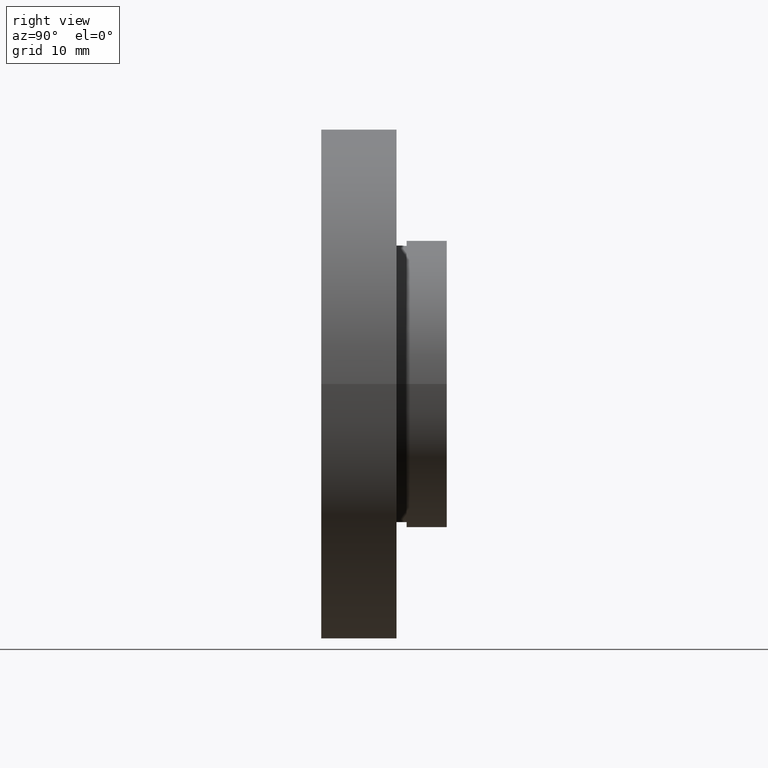
[diagram: clean part render]
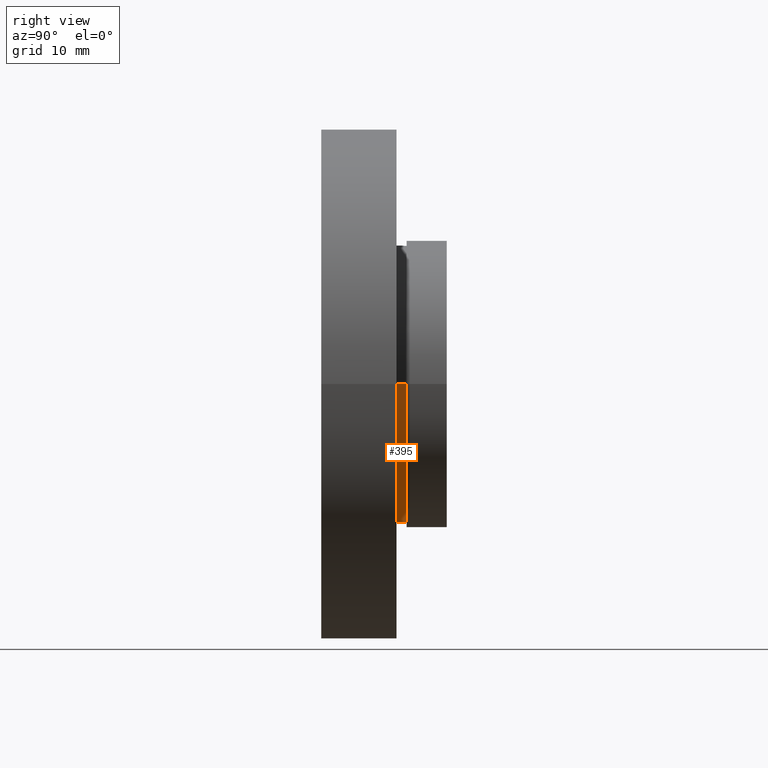
[diagram: same view with one face highlighted and labeled with its STEP entity id]
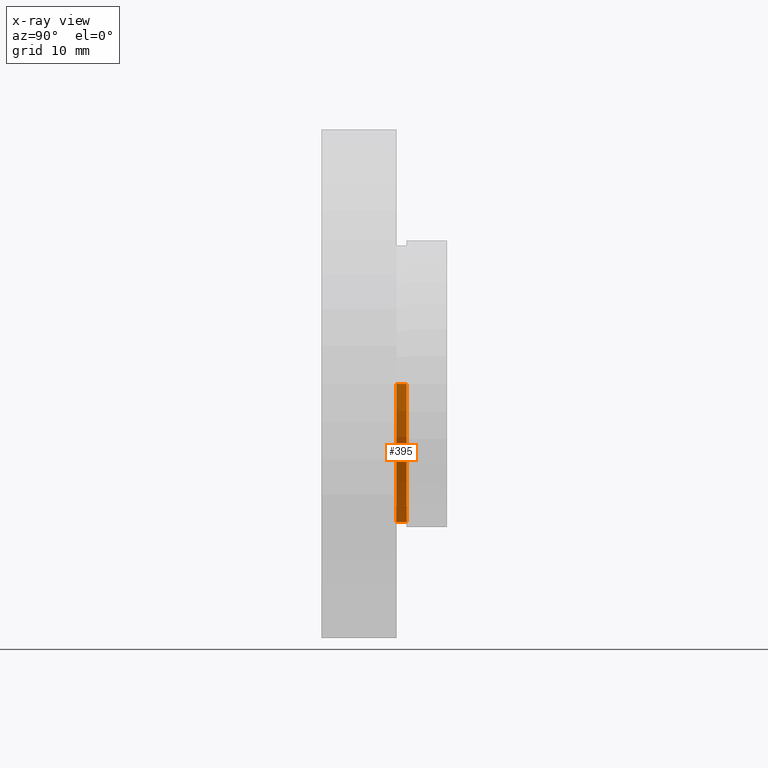
[diagram: x-ray of the same camera — body ghosted, the highlighted face saturated]
A machine part, right view. The second image highlights one B-rep face of the part: STEP entity #395.
The next image is the same camera in x-ray: the body ghosted, the highlighted face saturated — about 0% of this face is hidden behind the body in this view.
In plain terms, the highlighted cylindrical surface (partial cylindrical patch) has radius 13.75 mm, axis along (-0, 1, -0).
Its self-contained STEP definition (entity closure, byte-faithful):
#13 = VERTEX_POINT ( 'NONE', #398 ) ;
#40 = DIRECTION ( 'NONE',  ( -1.000000000000000000, 0.0000000000000000000, 0.0000000000000000000 ) ) ;
#46 = CYLINDRICAL_SURFACE ( 'NONE', #199, 13.75000000000000000 ) ;
#55 = CIRCLE ( 'NONE', #88, 13.75000000000000000 ) ;
#88 = AXIS2_PLACEMENT_3D ( 'NONE', #283, #141, #187 ) ;
#90 = CARTESIAN_POINT ( 'NONE',  ( 13.75000000000000200, 8.500000000000000000, 1.683889348827610700E-015 ) ) ;
#91 = CARTESIAN_POINT ( 'NONE',  ( -13.75000000000000000, 16.88601823708207700, 0.0000000000000000000 ) ) ;
#105 = FACE_OUTER_BOUND ( 'NONE', #320, .T. ) ;
#114 = VERTEX_POINT ( 'NONE', #576 ) ;
#135 = DIRECTION ( 'NONE',  ( -1.224646799147351000E-016, 1.000000000000000000, -0.0000000000000000000 ) ) ;
#136 = ORIENTED_EDGE ( 'NONE', *, *, #444, .F. ) ;
#138 = ORIENTED_EDGE ( 'NONE', *, *, #438, .F. ) ;
#139 = LINE ( 'NONE', #91, #416 ) ;
#141 = DIRECTION ( 'NONE',  ( -1.224646799147351000E-016, 1.000000000000000000, -0.0000000000000000000 ) ) ;
#155 = ORIENTED_EDGE ( 'NONE', *, *, #543, .T. ) ;
#164 = VECTOR ( 'NONE', #599, 1000.000000000000000 ) ;
#170 = AXIS2_PLACEMENT_3D ( 'NONE', #180, #135, #326 ) ;
#180 = CARTESIAN_POINT ( 'NONE',  ( 1.026991039163387700E-015, 8.499999999999998200, 0.0000000000000000000 ) ) ;
#187 = DIRECTION ( 'NONE',  ( -1.000000000000000000, -1.261617073437678000E-016, 0.0000000000000000000 ) ) ;
#199 = AXIS2_PLACEMENT_3D ( 'NONE', #534, #323, #40 ) ;
#283 = CARTESIAN_POINT ( 'NONE',  ( 1.149455719078122700E-015, 7.499999999999998200, 0.0000000000000000000 ) ) ;
#288 = LINE ( 'NONE', #316, #164 ) ;
#297 = CIRCLE ( 'NONE', #170, 13.75000000000000000 ) ;
#316 = CARTESIAN_POINT ( 'NONE',  ( 13.75000000000000000, 16.88601823708207700, 1.683889348827610700E-015 ) ) ;
#320 = EDGE_LOOP ( 'NONE', ( #138, #155, #502, #136 ) ) ;
#323 = DIRECTION ( 'NONE',  ( -1.224646799147351000E-016, 1.000000000000000000, -0.0000000000000000000 ) ) ;
#326 = DIRECTION ( 'NONE',  ( -1.000000000000000000, -1.261617073437678000E-016, 0.0000000000000000000 ) ) ;
#395 = ADVANCED_FACE ( 'NONE', ( #105 ), #46, .T. ) ;
#398 = CARTESIAN_POINT ( 'NONE',  ( -13.74999999999999800, 8.499999999999996400, 0.0000000000000000000 ) ) ;
#416 = VECTOR ( 'NONE', #482, 1000.000000000000000 ) ;
#438 = EDGE_CURVE ( 'NONE', #506, #448, #288, .T. ) ;
#444 = EDGE_CURVE ( 'NONE', #448, #13, #297, .T. ) ;
#448 = VERTEX_POINT ( 'NONE', #90 ) ;
#482 = DIRECTION ( 'NONE',  ( -1.224646799147351000E-016, 1.000000000000000000, -0.0000000000000000000 ) ) ;
#483 = EDGE_CURVE ( 'NONE', #114, #13, #139, .T. ) ;
#502 = ORIENTED_EDGE ( 'NONE', *, *, #483, .T. ) ;
#506 = VERTEX_POINT ( 'NONE', #560 ) ;
#534 = CARTESIAN_POINT ( 'NONE',  ( 0.0000000000000000000, 16.88601823708207700, 0.0000000000000000000 ) ) ;
#543 = EDGE_CURVE ( 'NONE', #506, #114, #55, .T. ) ;
#560 = CARTESIAN_POINT ( 'NONE',  ( 13.75000000000000200, 7.500000000000000000, 1.683889348827610700E-015 ) ) ;
#576 = CARTESIAN_POINT ( 'NONE',  ( -13.74999999999999800, 7.499999999999996400, 0.0000000000000000000 ) ) ;
#599 = DIRECTION ( 'NONE',  ( -1.224646799147351000E-016, 1.000000000000000000, -0.0000000000000000000 ) ) ;